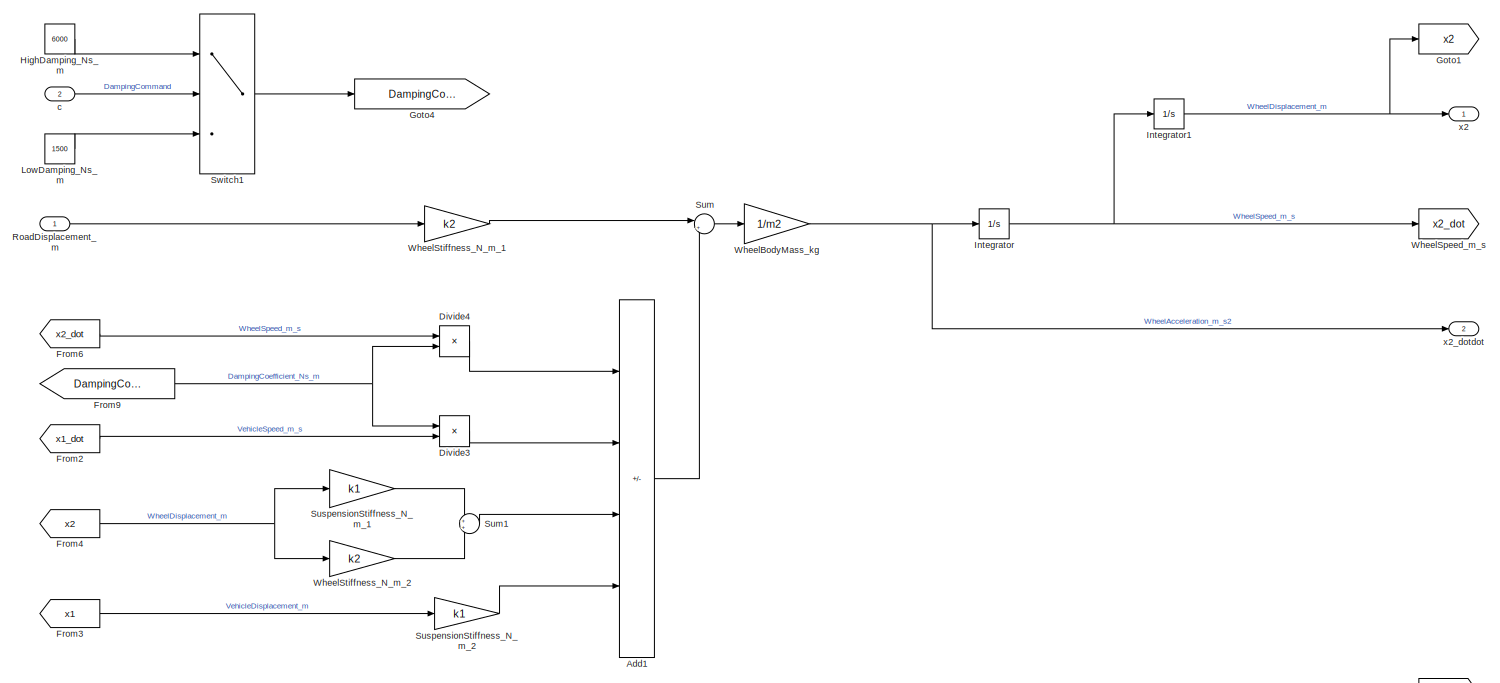
[diagram: root canvas - part 1/2, full width, top band]
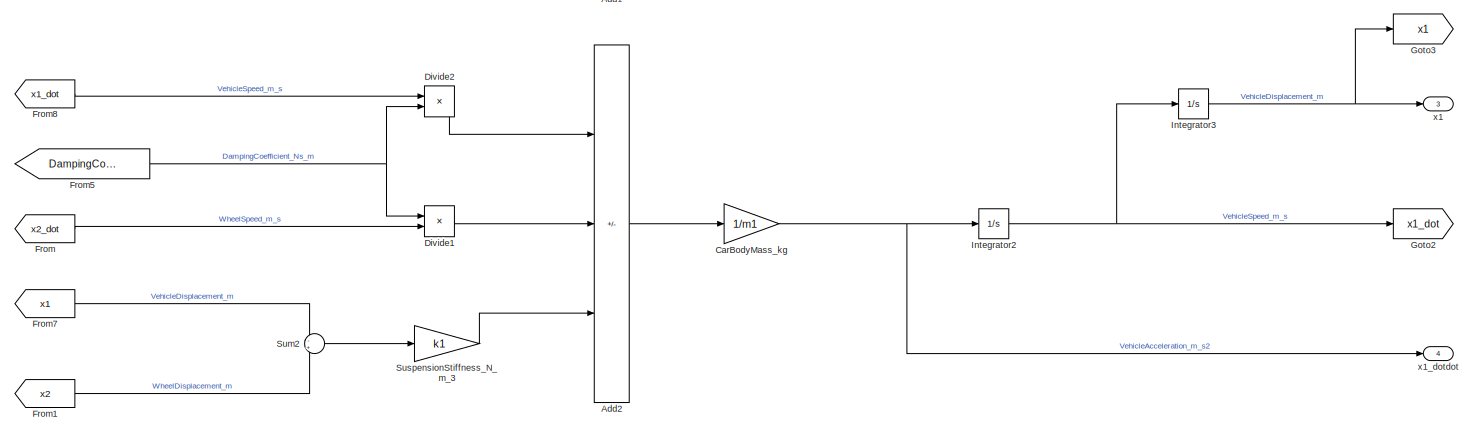
[diagram: root canvas - part 2/2, full width, bottom band]
MODEL slx_36d579ae4565
KIND model
CONFIG AbsTol = auto
CONFIG EnableMultiTasking = off
CONFIG FixedStep = auto
CONFIG MaxStep = auto
CONFIG MinStep = auto
CONFIG RelTol = 1e-3
CONFIG SampleTimeConstraint = Unconstrained
CONFIG SolverName = VariableStepAuto
CONFIG StartTime = 0.0
CONFIG StopTime = 10.0
WORKSPACE source: mxarray member
WORKSPACE c = 0
WORKSPACE k1: Simulink.Parameter (value not decoded)
WORKSPACE k2: Simulink.Parameter (value not decoded)
WORKSPACE m1: Simulink.Parameter (value not decoded)
WORKSPACE m2: Simulink.Parameter (value not decoded)
BLOCK [Sum] Add1
  IconShape = rectangular
  Inputs = -+-+
  Ports = [4, 1]
BLOCK [Sum] Add2
  IconShape = rectangular
  Inputs = -++
  Ports = [3, 1]
BLOCK [Gain] CarBodyMass_kg
  Gain = 1/m1
BLOCK [Product] Divide1
  Inputs = **
  Ports = [2, 1]
BLOCK [Product] Divide2
  Inputs = **
  Ports = [2, 1]
BLOCK [Product] Divide3
  Inputs = **
  Ports = [2, 1]
BLOCK [Product] Divide4
  Inputs = **
  Ports = [2, 1]
BLOCK [From] From
  GotoTag = x2_dot
BLOCK [From] From1
  GotoTag = x2
BLOCK [From] From2
  GotoTag = x1_dot
BLOCK [From] From3
  GotoTag = x1
BLOCK [From] From4
  GotoTag = x2
BLOCK [From] From5
  GotoTag = DampingCoefficient
BLOCK [From] From6
  GotoTag = x2_dot
BLOCK [From] From7
  GotoTag = x1
BLOCK [From] From8
  GotoTag = x1_dot
BLOCK [From] From9
  GotoTag = DampingCoefficient
BLOCK [Goto] Goto1
  GotoTag = x2
BLOCK [Goto] Goto2
  GotoTag = x1_dot
BLOCK [Goto] Goto3
  GotoTag = x1
BLOCK [Goto] Goto4
  GotoTag = DampingCoefficient
BLOCK [Constant] HighDamping_Ns_m
  Value = 6000
BLOCK [Integrator] Integrator
  Ports = [1, 1]
BLOCK [Integrator] Integrator1
  Ports = [1, 1]
BLOCK [Integrator] Integrator2
  Ports = [1, 1]
BLOCK [Integrator] Integrator3
  Ports = [1, 1]
BLOCK [Constant] LowDamping_Ns_m
  Value = 1500
BLOCK [Inport] RoadDisplacement_m
  OutDataTypeStr = double
BLOCK [Sum] Sum
  Inputs = |++
  Ports = [2, 1]
BLOCK [Sum] Sum1
  Ports = [2, 1]
BLOCK [Sum] Sum2
  Inputs = -+
  Ports = [2, 1]
BLOCK [Gain] SuspensionStiffness_N_m_1
  Gain = k1
BLOCK [Gain] SuspensionStiffness_N_m_2
  Gain = k1
BLOCK [Gain] SuspensionStiffness_N_m_3
  Gain = k1
BLOCK [Switch] Switch1
  Criteria = u2 > Threshold
  InputSameDT = off
  SaturateOnIntegerOverflow = off
BLOCK [Gain] WheelBodyMass_kg
  Gain = 1/m2
BLOCK [Goto] WheelSpeed_m_s
  GotoTag = x2_dot
BLOCK [Gain] WheelStiffness_N_m_1
  Gain = k2
BLOCK [Gain] WheelStiffness_N_m_2
  Gain = k2
BLOCK [Inport] c
  OutDataTypeStr = int8
  Port = 2
BLOCK [Outport] x1
  OutDataTypeStr = double
  Port = 3
BLOCK [Outport] x1_dotdot
  Port = 4
BLOCK [Outport] x2
  OutDataTypeStr = double
BLOCK [Outport] x2_dotdot
  Port = 2
LINE Add1:1 -> Sum:2
LINE Add2:1 -> CarBodyMass_kg:1
NET CarBodyMass_kg:1 -> Integrator2:1, x1_dotdot:1
LINE Divide1:1 -> Add2:2
LINE Divide2:1 -> Add2:1
LINE Divide3:1 -> Add1:2
LINE Divide4:1 -> Add1:1
LINE From1:1 -> Sum2:2
LINE From2:1 -> Divide3:2
LINE From3:1 -> SuspensionStiffness_N_m_2:1
NET From4:1 -> SuspensionStiffness_N_m_1:1, WheelStiffness_N_m_2:1
NET From5:1 -> Divide1:1, Divide2:2
LINE From6:1 -> Divide4:1
LINE From7:1 -> Sum2:1
LINE From8:1 -> Divide2:1
NET From9:1 -> Divide3:1, Divide4:2
LINE From:1 -> Divide1:2
LINE HighDamping_Ns_m:1 -> Switch1:1
NET Integrator1:1 -> Goto1:1, x2:1
NET Integrator2:1 -> Goto2:1, Integrator3:1
NET Integrator3:1 -> Goto3:1, x1:1
NET Integrator:1 -> Integrator1:1, WheelSpeed_m_s:1
LINE LowDamping_Ns_m:1 -> Switch1:3
LINE RoadDisplacement_m:1 -> WheelStiffness_N_m_1:1
LINE Sum1:1 -> Add1:3
LINE Sum2:1 -> SuspensionStiffness_N_m_3:1
LINE Sum:1 -> WheelBodyMass_kg:1
LINE SuspensionStiffness_N_m_1:1 -> Sum1:1
LINE SuspensionStiffness_N_m_2:1 -> Add1:4
LINE SuspensionStiffness_N_m_3:1 -> Add2:3
LINE Switch1:1 -> Goto4:1
NET WheelBodyMass_kg:1 -> Integrator:1, x2_dotdot:1
LINE WheelStiffness_N_m_1:1 -> Sum:1
LINE WheelStiffness_N_m_2:1 -> Sum1:2
LINE c:1 -> Switch1:2
note: NET lines group one-source signal fan-out (src -> all destinations, sorted); 1:1 wires keep LINE
